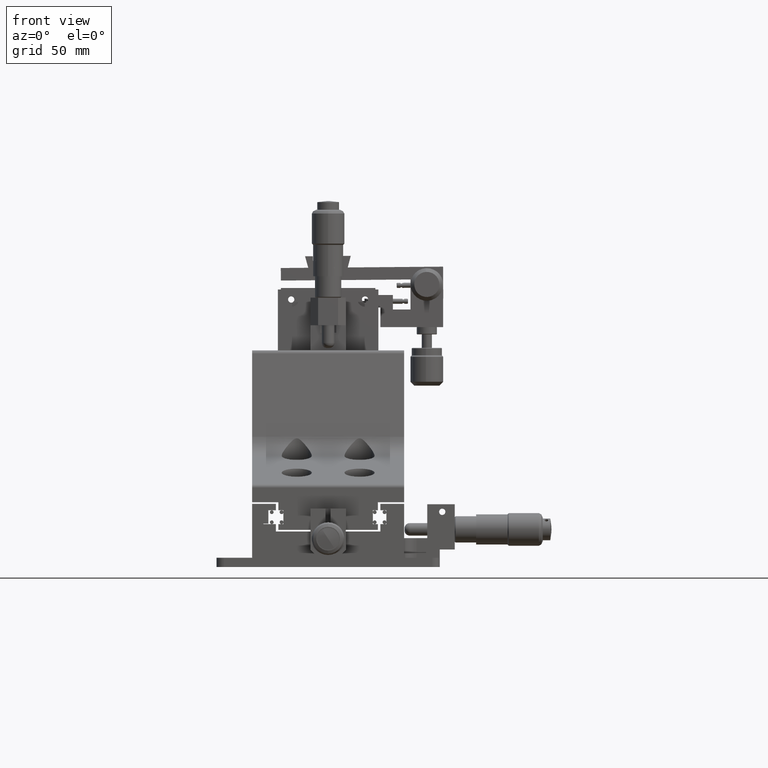
[diagram: clean part render]
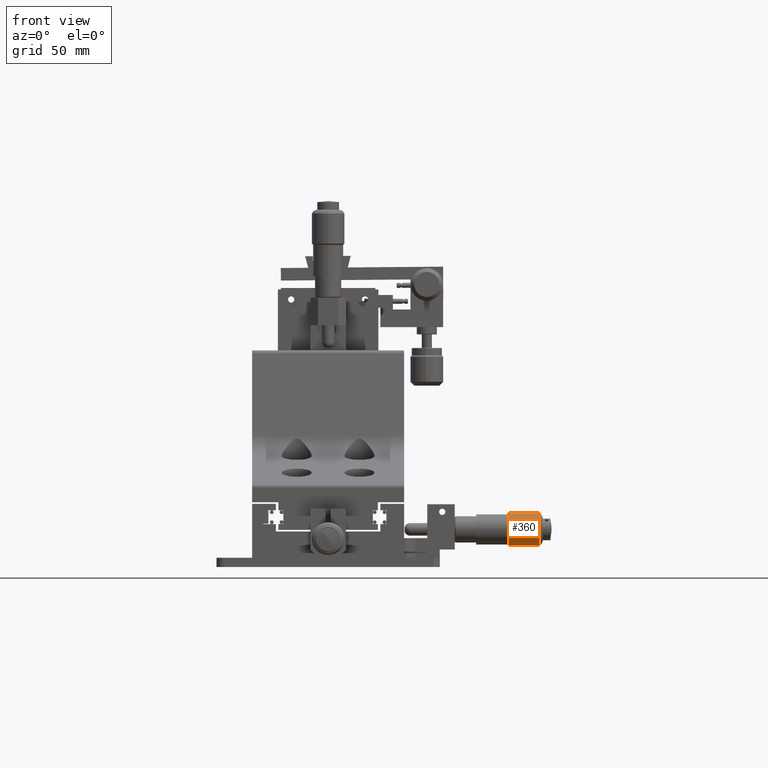
[diagram: same view with one face highlighted and labeled with its STEP entity id]
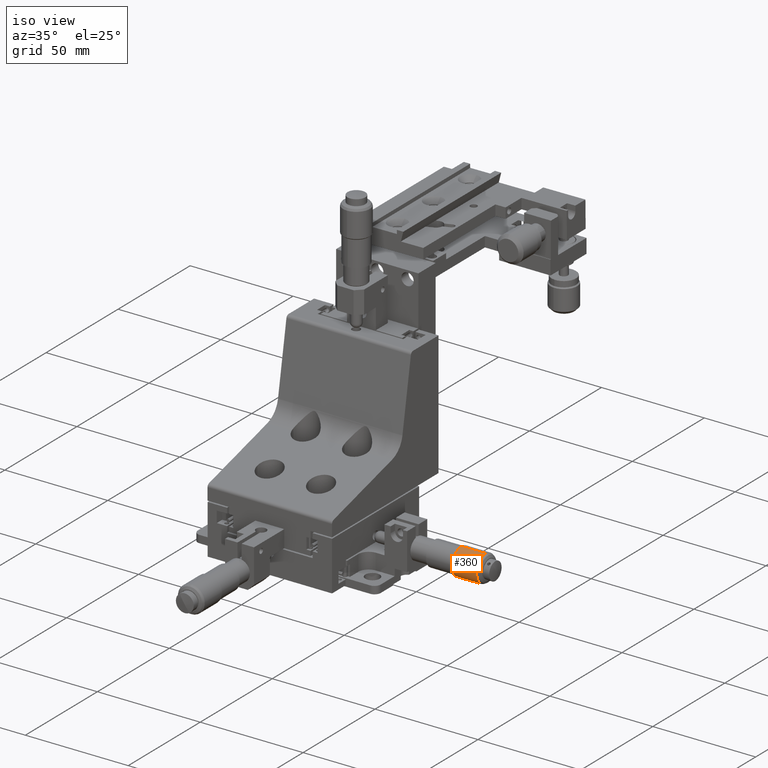
[diagram: same view with one face highlighted and labeled with its STEP entity id]
A machine part, front view. The second image highlights one B-rep face of the part: STEP entity #360.
A second angle (iso view) of the same face is appended — the face is thin or edge-on in the first view.
In plain terms, the highlighted cylindrical surface (edge-blend (fillet) strip) has radius 6.5 mm, axis along (1, -0, -0).
Its self-contained STEP definition (entity closure, byte-faithful):
#241 = VERTEX_POINT ( 'NONE', #13175 ) ;
#299 = EDGE_CURVE ( 'NONE', #25592, #312, #13304, .T. ) ;
#302 = EDGE_CURVE ( 'NONE', #25591, #241, #13307, .T. ) ;
#312 = VERTEX_POINT ( 'NONE', #13253 ) ;
#353 = EDGE_LOOP ( 'NONE', ( #362, #368, #409, #356 ) ) ;
#356 = ORIENTED_EDGE ( 'NONE', *, *, #373, .T. ) ;
#360 = ADVANCED_FACE ( 'NONE', ( #13426 ), #13429, .T. ) ;
#362 = ORIENTED_EDGE ( 'NONE', *, *, #299, .F. ) ;
#368 = ORIENTED_EDGE ( 'NONE', *, *, #428, .T. ) ;
#373 = EDGE_CURVE ( 'NONE', #241, #312, #13423, .T. ) ;
#409 = ORIENTED_EDGE ( 'NONE', *, *, #302, .T. ) ;
#428 = EDGE_CURVE ( 'NONE', #25592, #25591, #13500, .T. ) ;
#11999 = CARTESIAN_POINT ( 'NONE',  ( 71.95000000000001700, -9.387030565310272500E-016, 21.50000000000000000 ) ) ;
#12000 = CARTESIAN_POINT ( 'NONE',  ( 71.95000000000001700, -1.734723475976807100E-015, 8.499999999999996400 ) ) ;
#13175 = CARTESIAN_POINT ( 'NONE',  ( 83.93396159822877700, -1.734723475976807100E-015, 8.499999999999998200 ) ) ;
#13253 = CARTESIAN_POINT ( 'NONE',  ( 83.93396159822877700, -9.387030565310278400E-016, 21.50000000000000000 ) ) ;
#13290 = DIRECTION ( 'NONE',  ( 1.000000000000000000, -0.0000000000000000000, -0.0000000000000000000 ) ) ;
#13291 = VECTOR ( 'NONE', #13290, 1000.000000000000000 ) ;
#13292 = CARTESIAN_POINT ( 'NONE',  ( 58.95000000000001700, -1.734723475976807100E-015, 8.499999999999998200 ) ) ;
#13297 = DIRECTION ( 'NONE',  ( 1.000000000000000000, -0.0000000000000000000, -0.0000000000000000000 ) ) ;
#13298 = VECTOR ( 'NONE', #13297, 1000.000000000000000 ) ;
#13299 = CARTESIAN_POINT ( 'NONE',  ( 58.95000000000001700, -9.387030565310276500E-016, 21.50000000000000000 ) ) ;
#13304 = LINE ( 'NONE', #13299, #13298 ) ;
#13307 = LINE ( 'NONE', #13292, #13291 ) ;
#13378 = CARTESIAN_POINT ( 'NONE',  ( 58.95000000000001700, -1.734723475976807100E-015, 14.99999999999999800 ) ) ;
#13407 = DIRECTION ( 'NONE',  ( 0.0000000000000000000, 0.0000000000000000000, 1.000000000000000000 ) ) ;
#13408 = DIRECTION ( 'NONE',  ( -1.000000000000000000, 0.0000000000000000000, 0.0000000000000000000 ) ) ;
#13409 = AXIS2_PLACEMENT_3D ( 'NONE', #13418, #13408, #13407 ) ;
#13416 = DIRECTION ( 'NONE',  ( 0.0000000000000000000, 0.0000000000000000000, -1.000000000000000000 ) ) ;
#13417 = DIRECTION ( 'NONE',  ( 1.000000000000000000, -0.0000000000000000000, -0.0000000000000000000 ) ) ;
#13418 = CARTESIAN_POINT ( 'NONE',  ( 83.93396159822877700, -1.734723475976807100E-015, 14.99999999999999800 ) ) ;
#13423 = CIRCLE ( 'NONE', #13409, 6.500000000000000900 ) ;
#13426 = FACE_OUTER_BOUND ( 'NONE', #353, .T. ) ;
#13429 = CYLINDRICAL_SURFACE ( 'NONE', #13430, 6.499999999999999100 ) ;
#13430 = AXIS2_PLACEMENT_3D ( 'NONE', #13378, #13417, #13416 ) ;
#13500 = CIRCLE ( 'NONE', #13565, 6.500000000000000900 ) ;
#13562 = DIRECTION ( 'NONE',  ( 0.0000000000000000000, 0.0000000000000000000, 1.000000000000000000 ) ) ;
#13563 = DIRECTION ( 'NONE',  ( 1.000000000000000000, -0.0000000000000000000, -0.0000000000000000000 ) ) ;
#13564 = CARTESIAN_POINT ( 'NONE',  ( 71.95000000000001700, -1.734723475976807100E-015, 14.99999999999999800 ) ) ;
#13565 = AXIS2_PLACEMENT_3D ( 'NONE', #13564, #13563, #13562 ) ;
#25591 = VERTEX_POINT ( 'NONE', #12000 ) ;
#25592 = VERTEX_POINT ( 'NONE', #11999 ) ;